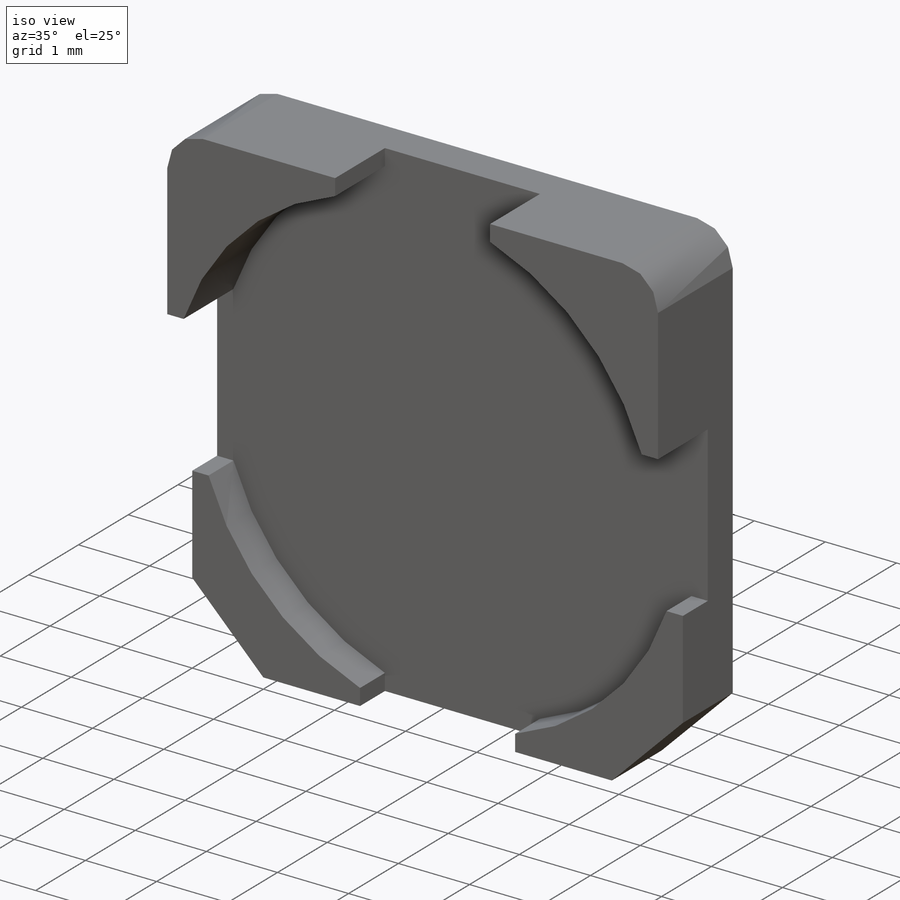
[diagram: iso view]
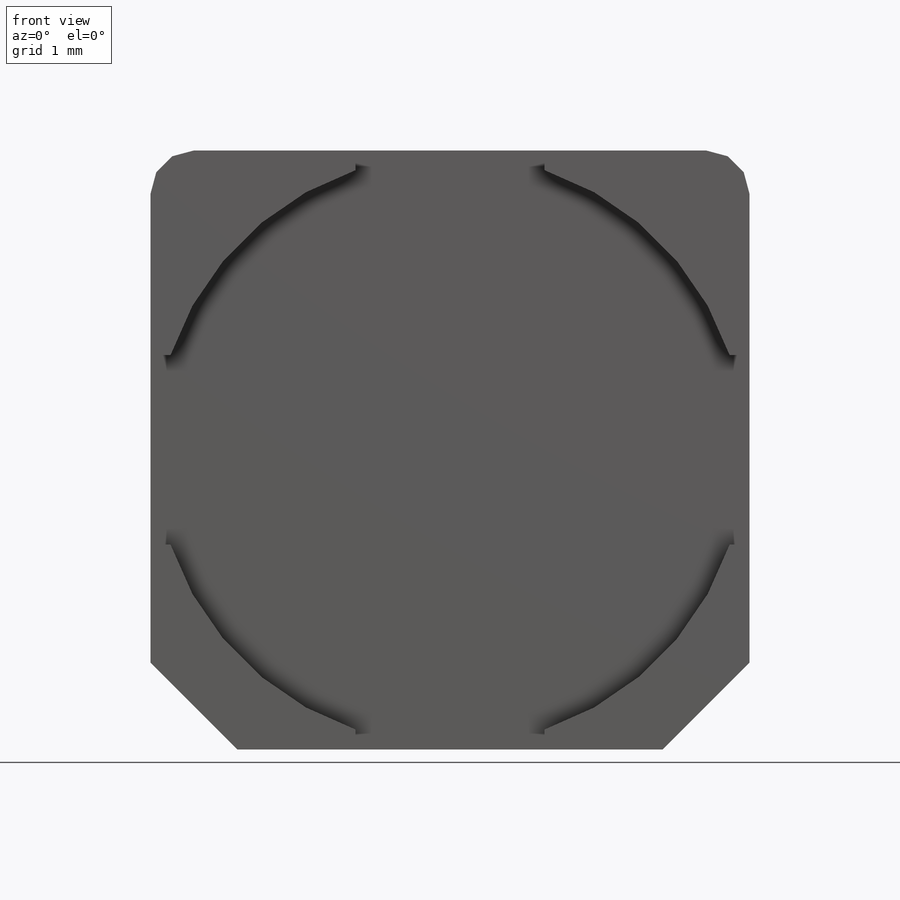
[diagram: front view]
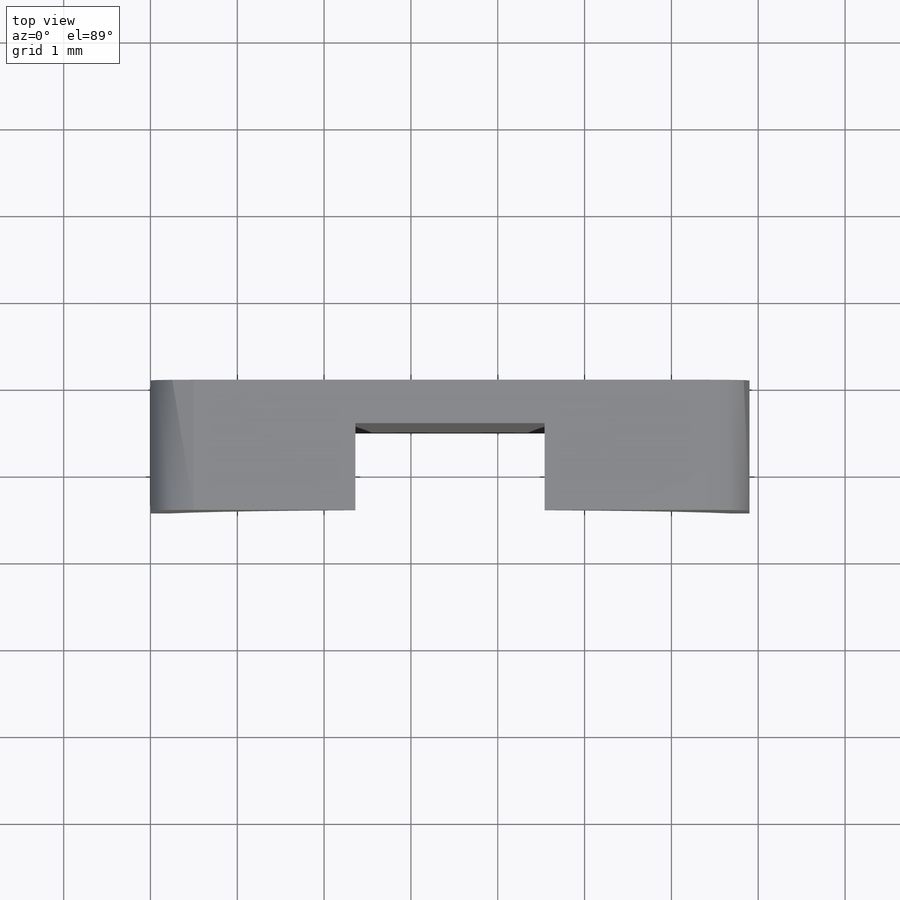
[diagram: top view]
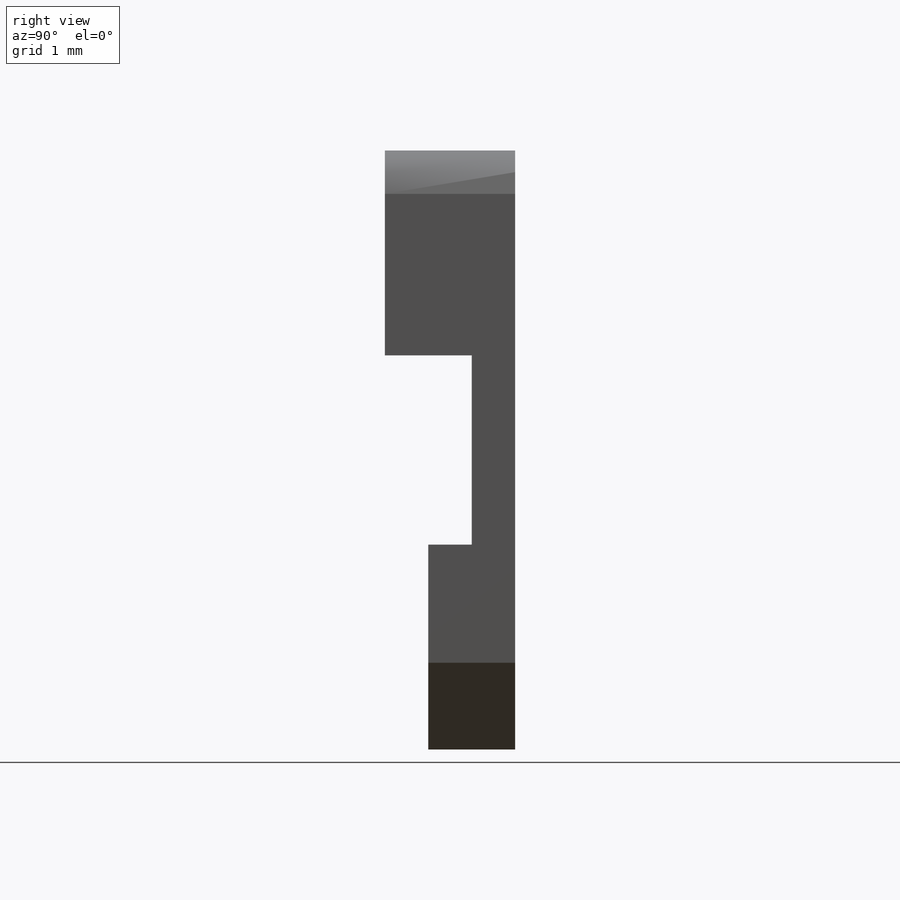
[diagram: right view]
SOLIDWORKS PART (.sldprt)
format: sldprt  version: not decoded by parser v0  size: 177,664 bytes
history: native  units: mm
features: sketch x4, plane x3, cut_extrude x3, material x1, extrude x1, chamfer x1, fillet x1 (+12 scaffold rows collapsed)
feature tree (26):
  scaffold x12  (default folders/planes/origin — collapsed)
  material  "Matériau <non spécifié>"
  plane  "Plan de face"
  plane  "Plan de dessus"
  plane  "Plan de droite"
  sketch  "Esquisse1"  dims[c1.D1=6.8mm c1.D2=6.8mm c2.D1=6.9mm]
  extrude  "Boss.-Extru.1"  Depth=1.5mm
  sketch  "Esquisse2"  dims[D1=~9.616652mm]
  cut_extrude  "Enlèv. mat.-Extru.7"  Depth=1mm
  sketch  "Esquisse3"  dims[c1.D1=~2.180722mm c1.D3=2.18mm c2.D1=1.09mm c2.D2=1.09mm]
  cut_extrude  "Enlèv. mat.-Extru.8"  Depth=1mm
  sketch  "Esquisse4"  dims[D1=~2.359639mm D2=6.9mm]
  cut_extrude  "Enlèv. mat.-Extru.9"  Depth=0.5mm
  chamfer  "Chanfrein1"  Distance=1mm Angle=45deg
  fillet  "Congé1"  Radius=0.5mm
decode coverage: 10 of 10 modeling features carry decoded parameters
note: ~ marks probable driven/reference dimensions
note: suppression state not decoded; provenance and decode notes live in map.json
